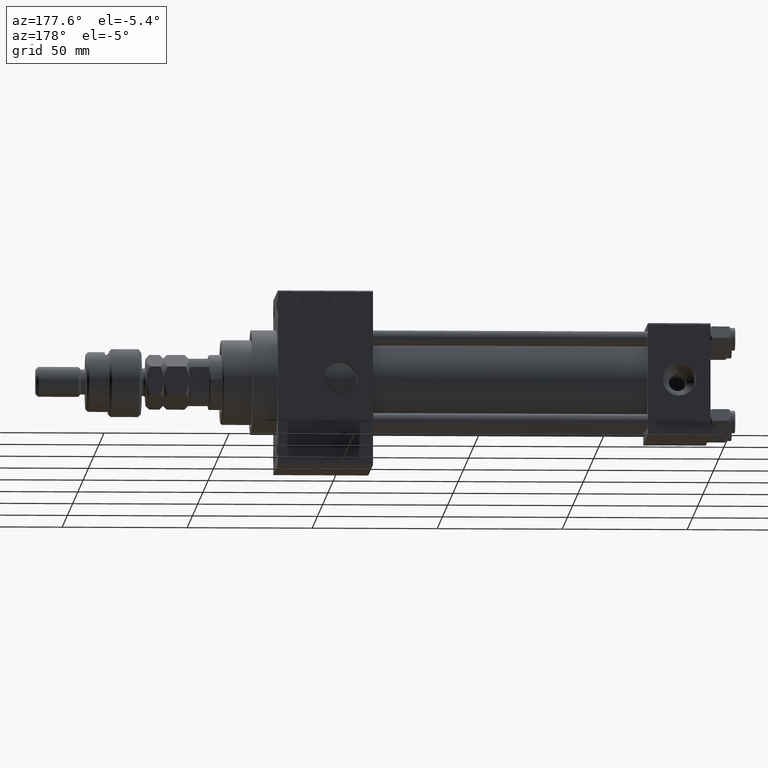
[diagram: clean part render]
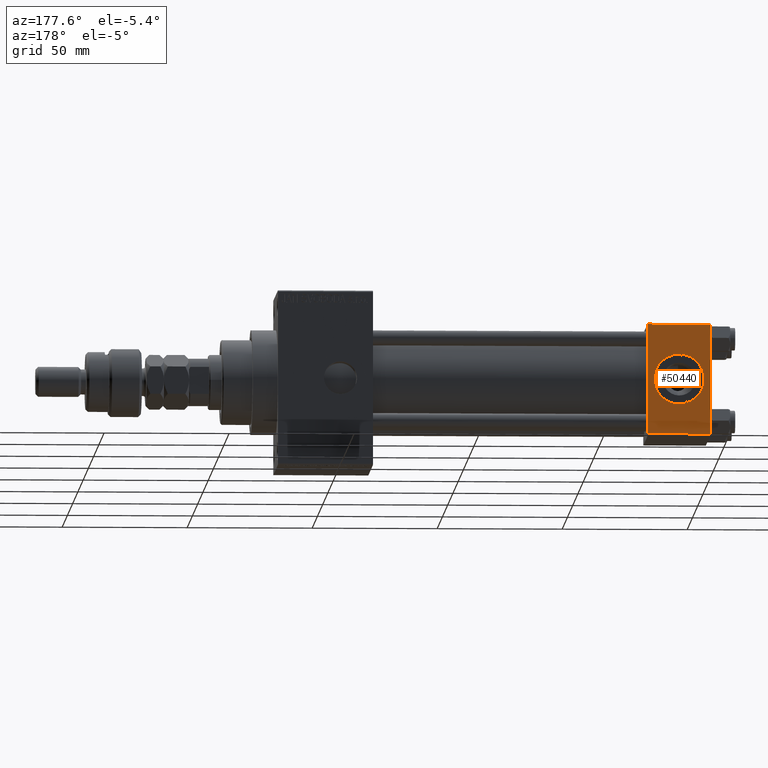
[diagram: same view with one face highlighted and labeled with its STEP entity id]
A machine part, auxiliary view. The second image highlights one B-rep face of the part: STEP entity #50440.
In plain terms, the highlighted planar face has unit normal (0, 1, 0).
Its self-contained STEP definition (entity closure, byte-faithful):
#22 = CARTESIAN_POINT ( 'NONE',  ( 12.50000000000000000, 22.50000000000000000, 9.999999999999996447 ) ) ;
#348 = VERTEX_POINT ( 'NONE', #22 ) ;
#693 = VECTOR ( 'NONE', #23313, 1000.000000000000000 ) ;
#2739 = CARTESIAN_POINT ( 'NONE',  ( 25.00000000000000000, 22.50000000000000000, 21.99999999999999645 ) ) ;
#3264 = EDGE_CURVE ( 'NONE', #38486, #11711, #51550, .T. ) ;
#3679 = EDGE_CURVE ( 'NONE', #38486, #11998, #48513, .T. ) ;
#4278 = EDGE_LOOP ( 'NONE', ( #37112, #7602, #40830, #41319 ) ) ;
#6288 = CARTESIAN_POINT ( 'NONE',  ( 12.50000000000000000, 22.50000000000000000, 0.000000000000000000 ) ) ;
#6581 = VECTOR ( 'NONE', #18733, 1000.000000000000000 ) ;
#7602 = ORIENTED_EDGE ( 'NONE', *, *, #11131, .T. ) ;
#8807 = CARTESIAN_POINT ( 'NONE',  ( 25.00000000000000000, 22.50000000000000000, -21.99999999999998224 ) ) ;
#9231 = VECTOR ( 'NONE', #40826, 1000.000000000000000 ) ;
#10124 = VECTOR ( 'NONE', #14180, 1000.000000000000000 ) ;
#10496 = CARTESIAN_POINT ( 'NONE',  ( 25.00000000000000000, 22.50000000000000000, 22.50000000000000355 ) ) ;
#10949 = CARTESIAN_POINT ( 'NONE',  ( 12.50000000000000178, 22.50000000000000000, -9.999999999999996447 ) ) ;
#11020 = FACE_OUTER_BOUND ( 'NONE', #4278, .T. ) ;
#11131 = EDGE_CURVE ( 'NONE', #37501, #11711, #25325, .T. ) ;
#11711 = VERTEX_POINT ( 'NONE', #29422 ) ;
#11784 = EDGE_CURVE ( 'NONE', #348, #16514, #20188, .T. ) ;
#11998 = VERTEX_POINT ( 'NONE', #2739 ) ;
#14180 = DIRECTION ( 'NONE',  ( 0.000000000000000000, 0.000000000000000000, -1.000000000000000000 ) ) ;
#14187 = DIRECTION ( 'NONE',  ( -0.000000000000000000, 1.000000000000000000, 0.000000000000000000 ) ) ;
#14723 = CARTESIAN_POINT ( 'NONE',  ( 25.00000000000000000, 22.50000000000000000, -21.99999999999996803 ) ) ;
#16514 = VERTEX_POINT ( 'NONE', #10949 ) ;
#18733 = DIRECTION ( 'NONE',  ( 0.000000000000000000, 0.000000000000000000, -1.000000000000000000 ) ) ;
#20188 = CIRCLE ( 'NONE', #42841, 9.999999999999996447 ) ;
#22965 = AXIS2_PLACEMENT_3D ( 'NONE', #10496, #14187, #50680 ) ;
#23160 = AXIS2_PLACEMENT_3D ( 'NONE', #41611, #29036, #49752 ) ;
#23313 = DIRECTION ( 'NONE',  ( 1.000000000000000000, 0.000000000000000000, 0.000000000000000000 ) ) ;
#25325 = LINE ( 'NONE', #8807, #9231 ) ;
#26255 = CARTESIAN_POINT ( 'NONE',  ( 25.00000000000000000, 22.50000000000000000, 22.50000000000000355 ) ) ;
#27047 = FACE_BOUND ( 'NONE', #39651, .T. ) ;
#27837 = CARTESIAN_POINT ( 'NONE',  ( 0.000000000000000000, 22.50000000000000000, 21.99999999999999645 ) ) ;
#29023 = ORIENTED_EDGE ( 'NONE', *, *, #36008, .F. ) ;
#29036 = DIRECTION ( 'NONE',  ( 0.000000000000000000, 1.000000000000000000, 0.000000000000000000 ) ) ;
#29422 = CARTESIAN_POINT ( 'NONE',  ( 0.000000000000000000, 22.50000000000000000, -21.99999999999996803 ) ) ;
#30723 = DIRECTION ( 'NONE',  ( 0.000000000000000000, 1.000000000000000000, 0.000000000000000000 ) ) ;
#32590 = ORIENTED_EDGE ( 'NONE', *, *, #11784, .F. ) ;
#34659 = PLANE ( 'NONE',  #22965 ) ;
#35778 = CARTESIAN_POINT ( 'NONE',  ( 0.000000000000000000, 22.50000000000000000, 22.50000000000000355 ) ) ;
#36008 = EDGE_CURVE ( 'NONE', #16514, #348, #50830, .T. ) ;
#37112 = ORIENTED_EDGE ( 'NONE', *, *, #45491, .T. ) ;
#37501 = VERTEX_POINT ( 'NONE', #14723 ) ;
#38075 = LINE ( 'NONE', #26255, #10124 ) ;
#38486 = VERTEX_POINT ( 'NONE', #27837 ) ;
#38578 = DIRECTION ( 'NONE',  ( 0.000000000000000000, 0.000000000000000000, 1.000000000000000000 ) ) ;
#39651 = EDGE_LOOP ( 'NONE', ( #32590, #29023 ) ) ;
#40826 = DIRECTION ( 'NONE',  ( -1.000000000000000000, 0.000000000000000000, 0.000000000000000000 ) ) ;
#40830 = ORIENTED_EDGE ( 'NONE', *, *, #3264, .F. ) ;
#41319 = ORIENTED_EDGE ( 'NONE', *, *, #3679, .T. ) ;
#41611 = CARTESIAN_POINT ( 'NONE',  ( 12.50000000000000000, 22.50000000000000000, 0.000000000000000000 ) ) ;
#42841 = AXIS2_PLACEMENT_3D ( 'NONE', #6288, #30723, #38578 ) ;
#43287 = CARTESIAN_POINT ( 'NONE',  ( 25.00000000000000000, 22.50000000000000000, 21.99999999999999645 ) ) ;
#45491 = EDGE_CURVE ( 'NONE', #11998, #37501, #38075, .T. ) ;
#48513 = LINE ( 'NONE', #43287, #693 ) ;
#49752 = DIRECTION ( 'NONE',  ( 0.000000000000000000, 0.000000000000000000, 1.000000000000000000 ) ) ;
#50440 = ADVANCED_FACE ( 'NONE', ( #27047, #11020 ), #34659, .T. ) ;
#50680 = DIRECTION ( 'NONE',  ( 0.000000000000000000, -0.000000000000000000, 1.000000000000000000 ) ) ;
#50830 = CIRCLE ( 'NONE', #23160, 9.999999999999996447 ) ;
#51550 = LINE ( 'NONE', #35778, #6581 ) ;